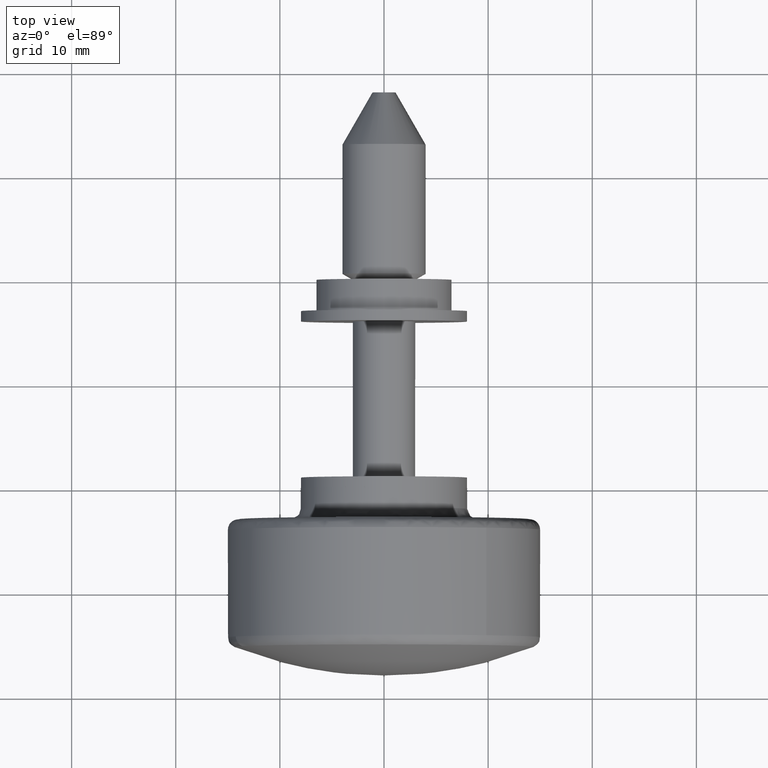
[diagram: clean part render]
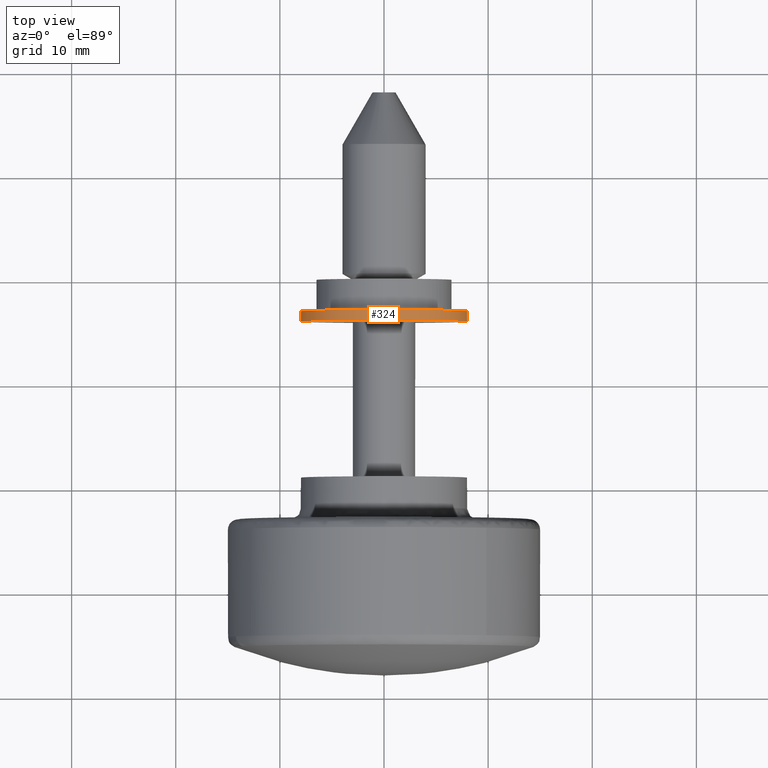
[diagram: same view with one face highlighted and labeled with its STEP entity id]
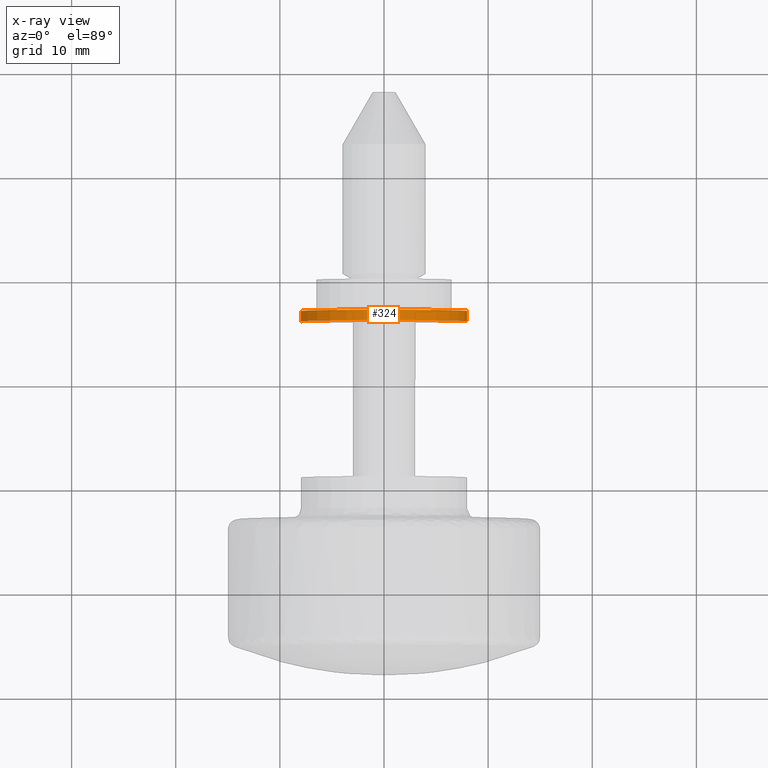
[diagram: x-ray of the same camera — body ghosted, the highlighted face saturated]
A machine part, top view. The second image highlights one B-rep face of the part: STEP entity #324.
The next image is the same camera in x-ray: the body ghosted, the highlighted face saturated — about 0% of this face is hidden behind the body in this view.
In plain terms, the highlighted face is a freeform B-spline surface patch.
Its self-contained STEP definition (entity closure, byte-faithful):
#226=CARTESIAN_POINT('',(7.025000000000001,-7.975338669865021,0.627672765822764));
#227=CARTESIAN_POINT('',(7.025000000000000,-7.347665904042257,8.603011435687785));
#228=CARTESIAN_POINT('',(7.025000000000001,0.627672765822764,7.975338669865021));
#229=CARTESIAN_POINT('',(7.025000000000000,8.603011435687785,7.347665904042257));
#230=CARTESIAN_POINT('',(7.025000000000001,7.975338669865021,-0.627672765822764));
#231=CARTESIAN_POINT('',(5.974374999999998,-7.975338669865021,0.627672765822764));
#232=CARTESIAN_POINT('',(5.974374999999998,-7.347665904042257,8.603011435687785));
#233=CARTESIAN_POINT('',(5.974374999999998,0.627672765822764,7.975338669865021));
#234=CARTESIAN_POINT('',(5.974374999999998,8.603011435687785,7.347665904042257));
#235=CARTESIAN_POINT('',(5.974374999999998,7.975338669865021,-0.627672765822764));
#243=(BOUNDED_SURFACE()B_SPLINE_SURFACE(2,1,((#226,#231),(#227,#232),(#228,#233),(#229,#234),(#230,#235)),.UNSPECIFIED.,.F.,.F.,.U.)B_SPLINE_SURFACE_WITH_KNOTS((3,2,3),(2,2),(0.0,13.254833995939039,26.509667991878072),(0.0,1.0),.UNSPECIFIED.)GEOMETRIC_REPRESENTATION_ITEM()RATIONAL_B_SPLINE_SURFACE(((1.0,1.0),(0.707106781186548,0.707106781186548),(1.0,1.0),(0.707106781186548,0.707106781186548),(1.0,1.0)))REPRESENTATION_ITEM('')SURFACE());
#244=CARTESIAN_POINT('',(6.0,0.0,8.0));
#245=VERTEX_POINT('',#244);
#246=CARTESIAN_POINT('',(6.000000000000001,-7.975338669862408,0.627672765855976));
#247=VERTEX_POINT('',#246);
#248=CARTESIAN_POINT('',(6.0,0.0,8.0));
#249=CARTESIAN_POINT('',(6.0,-7.395123933203868,8.000000000000002));
#250=CARTESIAN_POINT('',(6.000000000000001,-7.975338669862408,0.627672765855976));
#258=(BOUNDED_CURVE()B_SPLINE_CURVE(2,(#248,#249,#250),.UNSPECIFIED.,.F.,.U.)B_SPLINE_CURVE_WITH_KNOTS((3,3),(0.0,0.236331300631339),.UNSPECIFIED.)CURVE()GEOMETRIC_REPRESENTATION_ITEM()RATIONAL_B_SPLINE_CURVE((1.0,0.723120658606870,0.969723356168836))REPRESENTATION_ITEM(''));
#259=EDGE_CURVE('',#245,#247,#258,.T.);
#260=ORIENTED_EDGE('',*,*,#259,.T.);
#261=CARTESIAN_POINT('',(7.0,-7.975338669862408,0.627672765855976));
#262=VERTEX_POINT('',#261);
#263=CARTESIAN_POINT('',(7.0,-7.975338669862408,0.627672765855976));
#264=CARTESIAN_POINT('',(6.000000000000001,-7.975338669862408,0.627672765855976));
#265=QUASI_UNIFORM_CURVE('',1,(#263,#264),.UNSPECIFIED.,.F.,.U.);
#266=EDGE_CURVE('',#262,#247,#265,.T.);
#267=ORIENTED_EDGE('',*,*,#266,.F.);
#268=CARTESIAN_POINT('',(7.0,0.0,8.0));
#269=VERTEX_POINT('',#268);
#270=CARTESIAN_POINT('',(7.0,0.0,8.0));
#271=CARTESIAN_POINT('',(6.999999999999999,-7.395123933203868,8.000000000000002));
#272=CARTESIAN_POINT('',(7.0,-7.975338669862408,0.627672765855976));
#280=(BOUNDED_CURVE()B_SPLINE_CURVE(2,(#270,#271,#272),.UNSPECIFIED.,.F.,.U.)B_SPLINE_CURVE_WITH_KNOTS((3,3),(0.0,0.236331300631339),.UNSPECIFIED.)CURVE()GEOMETRIC_REPRESENTATION_ITEM()RATIONAL_B_SPLINE_CURVE((1.0,0.723120658606870,0.969723356168836))REPRESENTATION_ITEM(''));
#281=EDGE_CURVE('',#269,#262,#280,.T.);
#282=ORIENTED_EDGE('',*,*,#281,.F.);
#283=CARTESIAN_POINT('',(7.0,7.975338669862408,-0.627672765855977));
#284=VERTEX_POINT('',#283);
#285=CARTESIAN_POINT('',(7.0,7.975338669862408,-0.627672765855977));
#286=CARTESIAN_POINT('',(7.0,8.0,-0.314320856094727));
#287=CARTESIAN_POINT('',(7.0,8.0,0.0));
#288=CARTESIAN_POINT('',(6.999999999999999,8.0,8.0));
#289=CARTESIAN_POINT('',(7.0,0.0,8.0));
#297=(BOUNDED_CURVE()B_SPLINE_CURVE(2,(#285,#286,#287,#288,#289),.UNSPECIFIED.,.F.,.U.)B_SPLINE_CURVE_WITH_KNOTS((3,2,3),(0.736331300631339,0.750000000000000,1.0),.UNSPECIFIED.)CURVE()GEOMETRIC_REPRESENTATION_ITEM()RATIONAL_B_SPLINE_CURVE((0.969723356168836,0.983986122579678,1.0,0.707106781186548,1.0))REPRESENTATION_ITEM(''));
#298=EDGE_CURVE('',#284,#269,#297,.T.);
#299=ORIENTED_EDGE('',*,*,#298,.F.);
#300=CARTESIAN_POINT('',(6.0,7.975338669862408,-0.627672765855977));
#301=VERTEX_POINT('',#300);
#302=CARTESIAN_POINT('',(7.0,7.975338669862408,-0.627672765855977));
#303=CARTESIAN_POINT('',(6.0,7.975338669862408,-0.627672765855977));
#304=QUASI_UNIFORM_CURVE('',1,(#302,#303),.UNSPECIFIED.,.F.,.U.);
#305=EDGE_CURVE('',#284,#301,#304,.T.);
#306=ORIENTED_EDGE('',*,*,#305,.T.);
#307=CARTESIAN_POINT('',(5.999999999999999,7.975338669862408,-0.627672765855977));
#308=CARTESIAN_POINT('',(6.000000000000001,8.0,-0.314320856094727));
#309=CARTESIAN_POINT('',(6.0,8.0,0.0));
#310=CARTESIAN_POINT('',(6.0,8.0,8.0));
#311=CARTESIAN_POINT('',(6.0,0.0,8.0));
#319=(BOUNDED_CURVE()B_SPLINE_CURVE(2,(#307,#308,#309,#310,#311),.UNSPECIFIED.,.F.,.U.)B_SPLINE_CURVE_WITH_KNOTS((3,2,3),(0.736331300631339,0.750000000000000,1.0),.UNSPECIFIED.)CURVE()GEOMETRIC_REPRESENTATION_ITEM()RATIONAL_B_SPLINE_CURVE((0.969723356168836,0.983986122579678,1.0,0.707106781186548,1.0))REPRESENTATION_ITEM(''));
#320=EDGE_CURVE('',#301,#245,#319,.T.);
#321=ORIENTED_EDGE('',*,*,#320,.T.);
#322=EDGE_LOOP('',(#260,#267,#282,#299,#306,#321));
#323=FACE_OUTER_BOUND('',#322,.T.);
#324=ADVANCED_FACE('',(#323),#243,.T.);